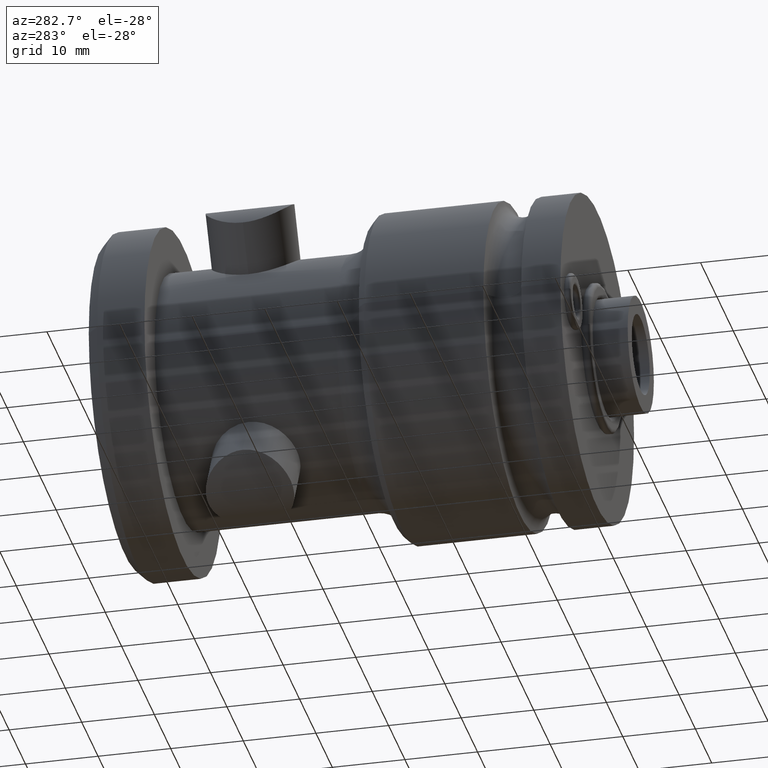
[diagram: clean part render]
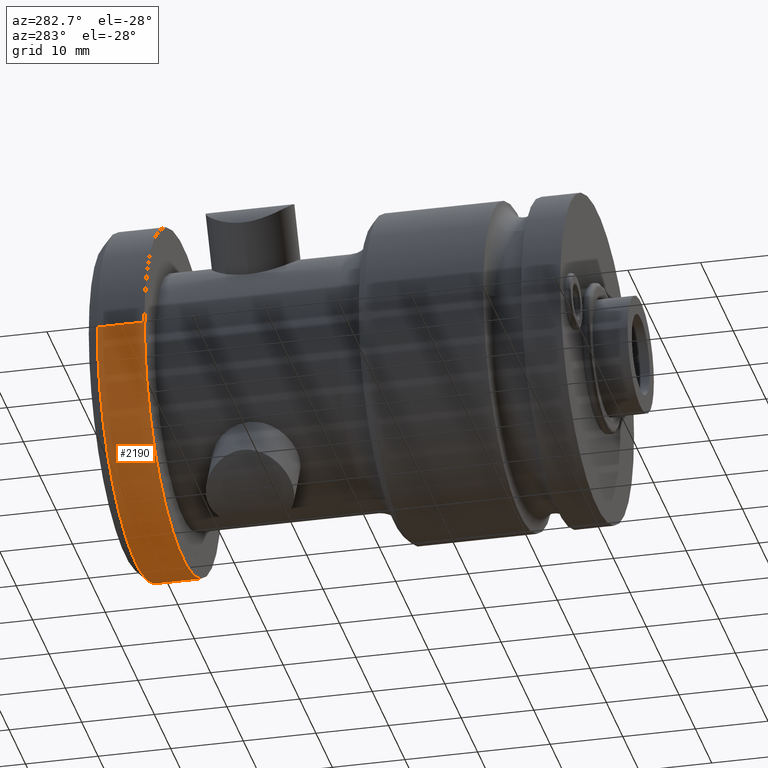
[diagram: same view with one face highlighted and labeled with its STEP entity id]
A machine part, auxiliary view. The second image highlights one B-rep face of the part: STEP entity #2190.
In plain terms, the highlighted cylindrical surface (partial cylindrical patch) has radius 23.75 mm, axis along (0, 1, 0).
Its self-contained STEP definition (entity closure, byte-faithful):
#797=CARTESIAN_POINT('',(0.E0,5.7E1,0.E0));
#798=DIRECTION('',(0.E0,1.E0,0.E0));
#799=DIRECTION('',(1.E0,0.E0,0.E0));
#800=AXIS2_PLACEMENT_3D('',#797,#798,#799);
#805=DIRECTION('',(0.E0,1.E0,0.E0));
#806=VECTOR('',#805,6.5E0);
#807=CARTESIAN_POINT('',(2.375E1,5.7E1,0.E0));
#808=LINE('',#807,#806);
#820=DIRECTION('',(0.E0,1.E0,0.E0));
#821=VECTOR('',#820,6.5E0);
#822=CARTESIAN_POINT('',(-2.375E1,5.7E1,0.E0));
#823=LINE('',#822,#821);
#849=CARTESIAN_POINT('',(0.E0,6.35E1,0.E0));
#850=DIRECTION('',(0.E0,1.E0,0.E0));
#851=DIRECTION('',(1.E0,0.E0,0.E0));
#852=AXIS2_PLACEMENT_3D('',#849,#850,#851);
#1473=CARTESIAN_POINT('',(2.375E1,5.7E1,0.E0));
#1474=CARTESIAN_POINT('',(2.375E1,6.35E1,0.E0));
#1475=VERTEX_POINT('',#1473);
#1476=VERTEX_POINT('',#1474);
#1497=CARTESIAN_POINT('',(-2.375E1,5.7E1,0.E0));
#1498=CARTESIAN_POINT('',(-2.375E1,6.35E1,0.E0));
#1499=VERTEX_POINT('',#1497);
#1500=VERTEX_POINT('',#1498);
#2176=CARTESIAN_POINT('',(0.E0,0.E0,0.E0));
#2177=DIRECTION('',(0.E0,1.E0,0.E0));
#2178=DIRECTION('',(1.E0,0.E0,0.E0));
#2179=AXIS2_PLACEMENT_3D('',#2176,#2177,#2178);
#2180=CYLINDRICAL_SURFACE('',#2179,2.375E1);
#2182=ORIENTED_EDGE('',*,*,#2181,.T.);
#2184=ORIENTED_EDGE('',*,*,#2183,.T.);
#2186=ORIENTED_EDGE('',*,*,#2185,.F.);
#2187=ORIENTED_EDGE('',*,*,#2165,.F.);
#2188=EDGE_LOOP('',(#2182,#2184,#2186,#2187));
#2189=FACE_OUTER_BOUND('',#2188,.F.);
#801=CIRCLE('',#800,2.375E1);
#853=CIRCLE('',#852,2.375E1);
#2165=EDGE_CURVE('',#1475,#1499,#801,.T.);
#2181=EDGE_CURVE('',#1475,#1476,#808,.T.);
#2183=EDGE_CURVE('',#1476,#1500,#853,.T.);
#2185=EDGE_CURVE('',#1499,#1500,#823,.T.);
#2190=ADVANCED_FACE('',(#2189),#2180,.T.);